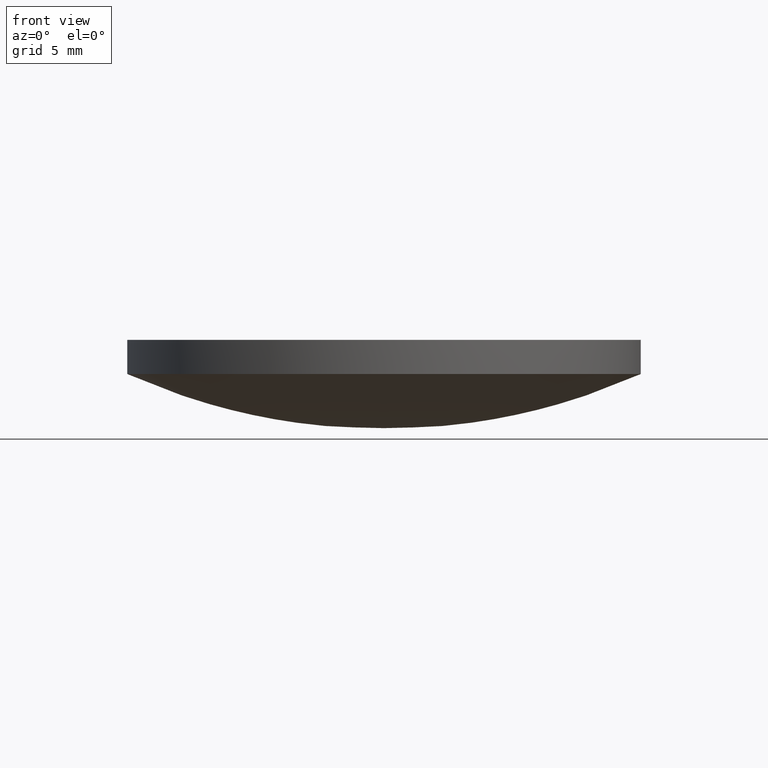
[diagram: clean part render]
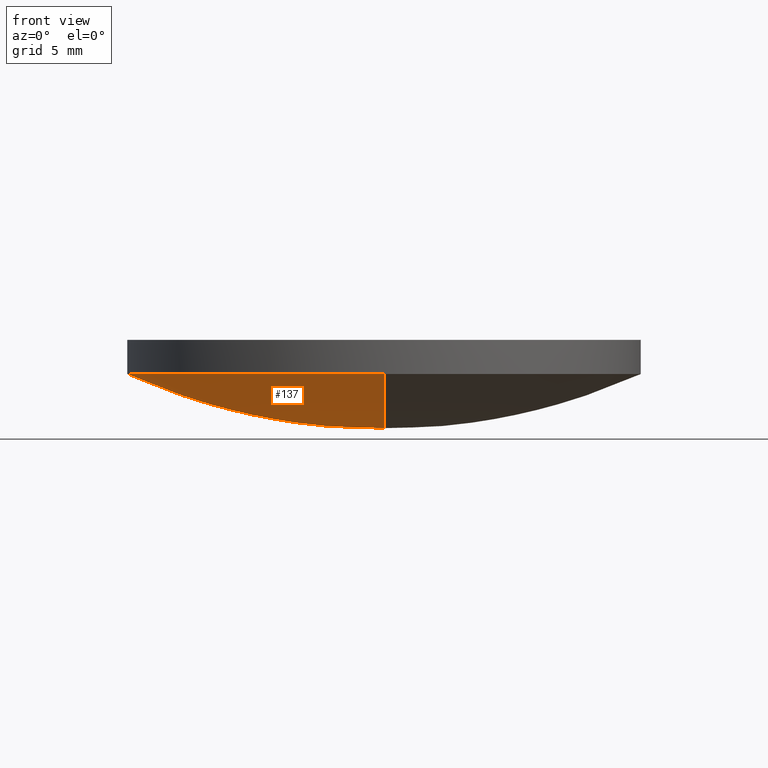
[diagram: same view with one face highlighted and labeled with its STEP entity id]
A machine part, front view. The second image highlights one B-rep face of the part: STEP entity #137.
In plain terms, the highlighted face is a freeform B-spline surface patch.
Its self-contained STEP definition (entity closure, byte-faithful):
#2 = CARTESIAN_POINT ( 'NONE',  ( -9.017284531906975400, 4.551507654516060000, -0.02610583074397926400 ) ) ;
#13 = CARTESIAN_POINT ( 'NONE',  ( -4.025857862907046500, -12.84315335437655700, 2.773786638847755900 ) ) ;
#15 = CARTESIAN_POINT ( 'NONE',  ( -1.734723475976807100E-015, 4.551507654516056400, -0.9830071144021392800 ) ) ;
#17 = CARTESIAN_POINT ( 'NONE',  ( 3.469446951953614200E-015, 12.84315335437657000, 2.773786638847761700 ) ) ;
#24 = EDGE_CURVE ( 'NONE', #171, #135, #214, .T. ) ;
#32 = DIRECTION ( 'NONE',  ( 1.000000000000000000, 0.0000000000000000000, 0.0000000000000000000 ) ) ;
#44 = AXIS2_PLACEMENT_3D ( 'NONE', #123, #83, #32 ) ;
#60 = VERTEX_POINT ( 'NONE', #228 ) ;
#65 = ORIENTED_EDGE ( 'NONE', *, *, #24, .F. ) ;
#66 = CARTESIAN_POINT ( 'NONE',  ( -9.017284531906979000, -4.551507654516044000, -0.02610583074398273300 ) ) ;
#75 = CARTESIAN_POINT ( 'NONE',  ( -7.962053846506552000, 12.84315335437657200, 3.618708357722064700 ) ) ;
#83 = DIRECTION ( 'NONE',  ( -0.0000000000000000000, -0.0000000000000000000, -1.000000000000000000 ) ) ;
#86 = CARTESIAN_POINT ( 'NONE',  ( -4.559414760900645900, -4.551507654516046700, -0.9830071144021413900 ) ) ;
#87 = EDGE_CURVE ( 'NONE', #171, #60, #188, .T. ) ;
#102 =( BOUNDED_SURFACE ( )  B_SPLINE_SURFACE ( 3, 3, ( 
 ( #206, #109, #13, #173 ),
 ( #208, #66, #86, #185 ),
 ( #229, #2, #145, #15 ),
 ( #151, #75, #162, #17 ) ),
 .UNSPECIFIED., .F., .F., .F. ) 
 B_SPLINE_SURFACE_WITH_KNOTS ( ( 4, 4 ),
 ( 4, 4 ),
 ( 0.0000000000000000000, 1.000000000000000000 ),
 ( 0.0000000000000000000, 1.000000000000000000 ),
 .UNSPECIFIED. ) 
 GEOMETRIC_REPRESENTATION_ITEM ( )  RATIONAL_B_SPLINE_SURFACE ( (
 ( 1.000000000000000000, 0.9851523356659553900, 0.9851523356659553900, 1.000000000000000000),
 ( 0.9405786923982912800, 0.9266132956938069000, 0.9266132956938069000, 0.9405786923982912800),
 ( 0.9405786923982912800, 0.9266132956938069000, 0.9266132956938069000, 0.9405786923982912800),
 ( 1.000000000000000000, 0.9851523356659553900, 0.9851523356659553900, 1.000000000000000000) ) ) 
 REPRESENTATION_ITEM ( '' )  SURFACE ( )  );
#107 = DIRECTION ( 'NONE',  ( -2.334397171259000300E-016, -1.000000000000000000, -2.229721691486898600E-016 ) ) ;
#109 = CARTESIAN_POINT ( 'NONE',  ( -7.962053846506560000, -12.84315335437655700, 3.618708357722058000 ) ) ;
#116 = DIRECTION ( 'NONE',  ( 1.000000000000000000, 0.0000000000000000000, 0.0000000000000000000 ) ) ;
#123 = CARTESIAN_POINT ( 'NONE',  ( 4.996003610813200500E-016, 2.442490654175340100E-015, 2.709361147626399900 ) ) ;
#131 = CARTESIAN_POINT ( 'NONE',  ( 4.996003610813200500E-016, 2.442490654175340100E-015, 2.709361147626399900 ) ) ;
#135 = VERTEX_POINT ( 'NONE', #142 ) ;
#137 = ADVANCED_FACE ( 'NONE', ( #197 ), #102, .T. ) ;
#141 = ORIENTED_EDGE ( 'NONE', *, *, #157, .T. ) ;
#142 = CARTESIAN_POINT ( 'NONE',  ( 1.104149714745860900E-014, 12.69999999999999600, 2.709361147626402100 ) ) ;
#145 = CARTESIAN_POINT ( 'NONE',  ( -4.559414760900645900, 4.551507654516059100, -0.9830071144021376200 ) ) ;
#150 = EDGE_LOOP ( 'NONE', ( #65, #220, #141 ) ) ;
#151 = CARTESIAN_POINT ( 'NONE',  ( -11.63325800064603800, 12.84315335437657200, 5.270916453259499900 ) ) ;
#157 = EDGE_CURVE ( 'NONE', #60, #135, #183, .T. ) ;
#162 = CARTESIAN_POINT ( 'NONE',  ( -4.025857862907037600, 12.84315335437657200, 2.773786638847762100 ) ) ;
#171 = VERTEX_POINT ( 'NONE', #212 ) ;
#173 = CARTESIAN_POINT ( 'NONE',  ( -5.204170427930421300E-015, -12.84315335437655900, 2.773786638847754600 ) ) ;
#183 = CIRCLE ( 'NONE', #198, 12.69999999999999900 ) ;
#185 = CARTESIAN_POINT ( 'NONE',  ( -1.734723475976807100E-015, -4.551507654516046700, -0.9830071144021425000 ) ) ;
#188 = CIRCLE ( 'NONE', #44, 12.69999999999999900 ) ;
#197 = FACE_OUTER_BOUND ( 'NONE', #150, .T. ) ;
#198 = AXIS2_PLACEMENT_3D ( 'NONE', #131, #215, #116 ) ;
#205 = CARTESIAN_POINT ( 'NONE',  ( 7.105427357601000300E-015, 0.0000000000000000000, 31.12000000000000100 ) ) ;
#206 = CARTESIAN_POINT ( 'NONE',  ( -11.63325800064604500, -12.84315335437655700, 5.270916453259492800 ) ) ;
#208 = CARTESIAN_POINT ( 'NONE',  ( -13.17504245100463800, -4.551507654516043100, 1.845073489390614900 ) ) ;
#212 = CARTESIAN_POINT ( 'NONE',  ( 5.112128332460749800E-015, -12.69999999999999600, 2.709361147626402100 ) ) ;
#214 = CIRCLE ( 'NONE', #224, 31.12000000000000100 ) ;
#215 = DIRECTION ( 'NONE',  ( -0.0000000000000000000, -0.0000000000000000000, -1.000000000000000000 ) ) ;
#220 = ORIENTED_EDGE ( 'NONE', *, *, #87, .T. ) ;
#224 = AXIS2_PLACEMENT_3D ( 'NONE', #205, #226, #107 ) ;
#226 = DIRECTION ( 'NONE',  ( 1.000000000000000000, -2.334397171258999800E-016, 3.419090247868619700E-017 ) ) ;
#228 = CARTESIAN_POINT ( 'NONE',  ( -12.69999999999999900, 3.997792089092478900E-015, 2.709361147626399900 ) ) ;
#229 = CARTESIAN_POINT ( 'NONE',  ( -13.17504245100463200, 4.551507654516059100, 1.845073489390618000 ) ) ;